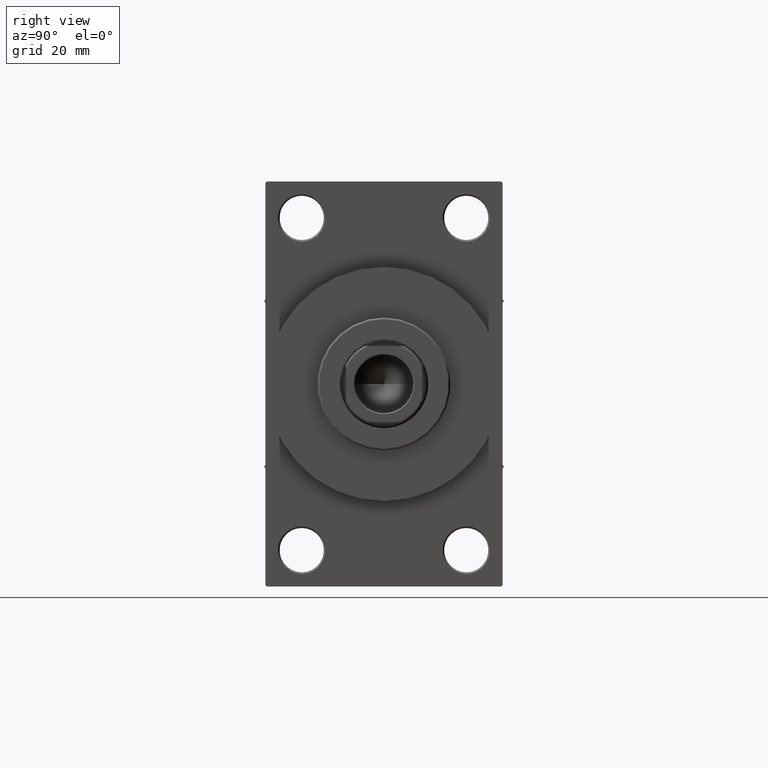
[diagram: clean part render]
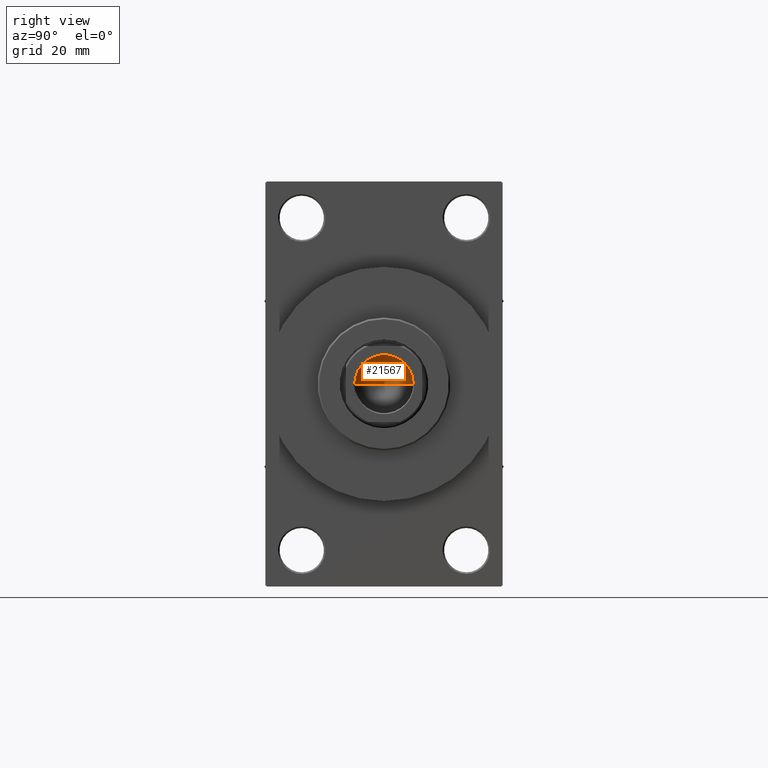
[diagram: same view with one face highlighted and labeled with its STEP entity id]
A machine part, right view. The second image highlights one B-rep face of the part: STEP entity #21567.
In plain terms, the highlighted conical surface has half-angle 59 deg.
Its self-contained STEP definition (entity closure, byte-faithful):
#1052 = DIRECTION ( 'NONE',  ( 0.8571673007021117785, 0.000000000000000000, 0.5150380749100550437 ) ) ;
#2725 = DIRECTION ( 'NONE',  ( -0.000000000000000000, -0.000000000000000000, 1.000000000000000000 ) ) ;
#3059 = CARTESIAN_POINT ( 'NONE',  ( 9.249999999999992895, 0.000000000000000000, 77.99999999999998579 ) ) ;
#6115 = AXIS2_PLACEMENT_3D ( 'NONE', #12730, #44986, #12255 ) ;
#8066 = AXIS2_PLACEMENT_3D ( 'NONE', #27107, #2725, #16574 ) ;
#10208 = EDGE_CURVE ( 'NONE', #17956, #24878, #41443, .T. ) ;
#12255 = DIRECTION ( 'NONE',  ( 1.000000000000000000, 0.000000000000000000, 0.000000000000000000 ) ) ;
#12478 = VERTEX_POINT ( 'NONE', #3059 ) ;
#12730 = CARTESIAN_POINT ( 'NONE',  ( 0.000000000000000000, 0.000000000000000000, 77.99999999999998579 ) ) ;
#14884 = CARTESIAN_POINT ( 'NONE',  ( 9.249999999999992895, 0.000000000000000000, 77.99999999999998579 ) ) ;
#16574 = DIRECTION ( 'NONE',  ( 1.000000000000000000, 0.000000000000000000, 0.000000000000000000 ) ) ;
#17132 = VECTOR ( 'NONE', #1052, 1000.000000000000000 ) ;
#17956 = VERTEX_POINT ( 'NONE', #29267 ) ;
#18757 = CARTESIAN_POINT ( 'NONE',  ( -9.249999999999992895, 1.132798289211300712E-15, 77.99999999999998579 ) ) ;
#19062 = CIRCLE ( 'NONE', #6115, 9.249999999999992895 ) ;
#21567 = ADVANCED_FACE ( 'NONE', ( #44302 ), #24076, .F. ) ;
#22014 = ORIENTED_EDGE ( 'NONE', *, *, #10208, .T. ) ;
#22766 = LINE ( 'NONE', #14884, #17132 ) ;
#24076 = CONICAL_SURFACE ( 'NONE', #8066, 9.249999999999992895, 1.029744258676653423 ) ;
#24557 = VECTOR ( 'NONE', #33326, 1000.000000000000000 ) ;
#24623 = EDGE_CURVE ( 'NONE', #24878, #12478, #19062, .T. ) ;
#24878 = VERTEX_POINT ( 'NONE', #36334 ) ;
#26313 = ORIENTED_EDGE ( 'NONE', *, *, #24623, .T. ) ;
#27107 = CARTESIAN_POINT ( 'NONE',  ( 0.000000000000000000, 0.000000000000000000, 77.99999999999998579 ) ) ;
#28470 = EDGE_LOOP ( 'NONE', ( #47170, #22014, #26313 ) ) ;
#29267 = CARTESIAN_POINT ( 'NONE',  ( -9.769621978240258809E-15, 0.000000000000000000, 72.44203927399505005 ) ) ;
#33326 = DIRECTION ( 'NONE',  ( -0.8571673007021117785, 1.049727191138617956E-16, 0.5150380749100550437 ) ) ;
#36334 = CARTESIAN_POINT ( 'NONE',  ( -9.249999999999992895, 1.132798289211300712E-15, 77.99999999999998579 ) ) ;
#39451 = EDGE_CURVE ( 'NONE', #17956, #12478, #22766, .T. ) ;
#41443 = LINE ( 'NONE', #18757, #24557 ) ;
#44302 = FACE_OUTER_BOUND ( 'NONE', #28470, .T. ) ;
#44986 = DIRECTION ( 'NONE',  ( -0.000000000000000000, -0.000000000000000000, 1.000000000000000000 ) ) ;
#47170 = ORIENTED_EDGE ( 'NONE', *, *, #39451, .F. ) ;